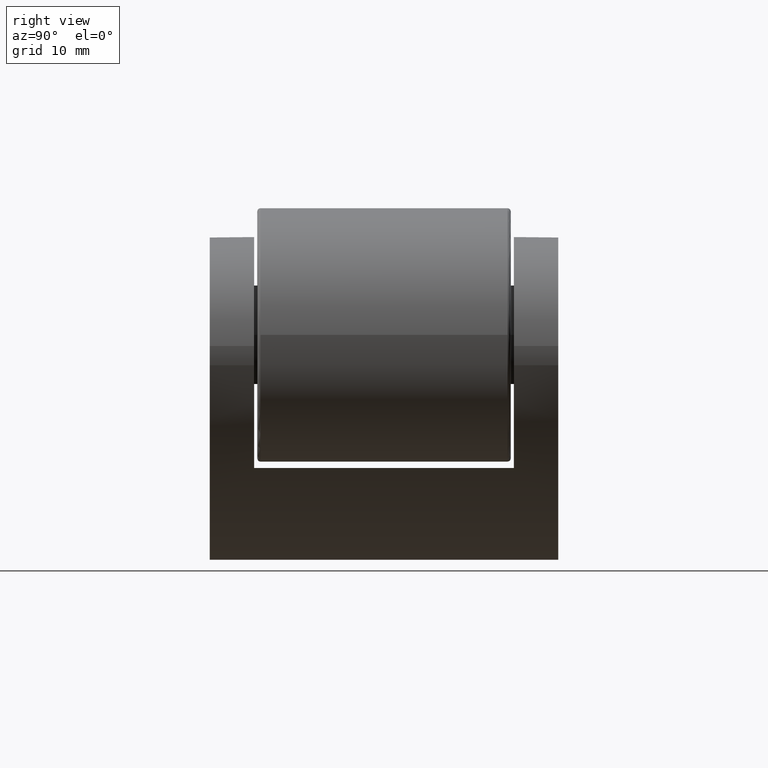
[diagram: clean part render]
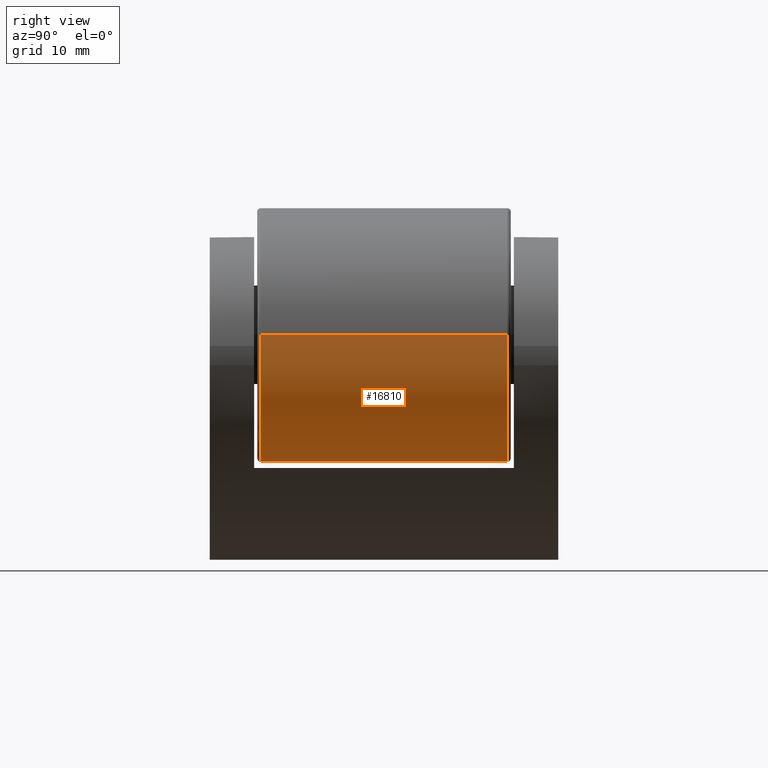
[diagram: same view with one face highlighted and labeled with its STEP entity id]
A machine part, right view. The second image highlights one B-rep face of the part: STEP entity #16810.
In plain terms, the highlighted cylindrical surface (partial cylindrical patch) has radius 20 mm, axis along (0, -1, 0).
Its self-contained STEP definition (entity closure, byte-faithful):
#143 = CARTESIAN_POINT ( 'NONE',  ( 0.000000000000000000, 19.50000000000000355, -36.00000000000000000 ) ) ;
#888 = DIRECTION ( 'NONE',  ( 0.000000000000000000, -1.000000000000000000, 0.000000000000000000 ) ) ;
#3028 = VERTEX_POINT ( 'NONE', #13844 ) ;
#3062 = VERTEX_POINT ( 'NONE', #7950 ) ;
#3724 = EDGE_CURVE ( 'NONE', #3028, #18266, #4158, .T. ) ;
#3801 = ORIENTED_EDGE ( 'NONE', *, *, #17717, .T. ) ;
#4158 = CIRCLE ( 'NONE', #6023, 20.00000000000000355 ) ;
#4461 = EDGE_CURVE ( 'NONE', #3062, #18266, #16980, .T. ) ;
#6023 = AXIS2_PLACEMENT_3D ( 'NONE', #25357, #6095, #7953 ) ;
#6095 = DIRECTION ( 'NONE',  ( 0.000000000000000000, 1.000000000000000000, 0.000000000000000000 ) ) ;
#6178 = DIRECTION ( 'NONE',  ( 0.000000000000000000, -1.000000000000000000, 0.000000000000000000 ) ) ;
#7377 = CARTESIAN_POINT ( 'NONE',  ( 0.000000000000000000, 19.50000000000000355, -15.99999999999999289 ) ) ;
#7575 = CARTESIAN_POINT ( 'NONE',  ( 0.000000000000000000, 20.00000000000000355, -36.00000000000000000 ) ) ;
#7950 = CARTESIAN_POINT ( 'NONE',  ( -20.00000000000000355, 19.50000000000000355, -15.99999999999999289 ) ) ;
#7953 = DIRECTION ( 'NONE',  ( 0.000000000000000000, 0.000000000000000000, 1.000000000000000000 ) ) ;
#9216 = EDGE_LOOP ( 'NONE', ( #14977, #3801, #17805, #14727 ) ) ;
#9421 = FACE_OUTER_BOUND ( 'NONE', #9216, .T. ) ;
#9710 = CIRCLE ( 'NONE', #18416, 20.00000000000000355 ) ;
#11229 = VECTOR ( 'NONE', #11329, 1000.000000000000000 ) ;
#11329 = DIRECTION ( 'NONE',  ( 0.000000000000000000, -1.000000000000000000, 0.000000000000000000 ) ) ;
#11385 = AXIS2_PLACEMENT_3D ( 'NONE', #11793, #6178, #12041 ) ;
#11793 = CARTESIAN_POINT ( 'NONE',  ( 0.000000000000000000, 20.00000000000000355, -15.99999999999999289 ) ) ;
#12041 = DIRECTION ( 'NONE',  ( 0.000000000000000000, 0.000000000000000000, -1.000000000000000000 ) ) ;
#13103 = DIRECTION ( 'NONE',  ( 0.000000000000000000, 0.000000000000000000, 1.000000000000000000 ) ) ;
#13844 = CARTESIAN_POINT ( 'NONE',  ( 0.000000000000000000, -19.49999999999999645, -36.00000000000000000 ) ) ;
#14016 = CARTESIAN_POINT ( 'NONE',  ( -20.00000000000000355, -19.49999999999999645, -15.99999999999999289 ) ) ;
#14213 = VECTOR ( 'NONE', #888, 1000.000000000000000 ) ;
#14629 = CARTESIAN_POINT ( 'NONE',  ( -20.00000000000000355, 20.00000000000000355, -15.99999999999999289 ) ) ;
#14727 = ORIENTED_EDGE ( 'NONE', *, *, #4461, .F. ) ;
#14977 = ORIENTED_EDGE ( 'NONE', *, *, #16561, .T. ) ;
#16561 = EDGE_CURVE ( 'NONE', #3062, #24948, #9710, .T. ) ;
#16810 = ADVANCED_FACE ( 'NONE', ( #9421 ), #17999, .T. ) ;
#16980 = LINE ( 'NONE', #14629, #14213 ) ;
#17717 = EDGE_CURVE ( 'NONE', #24948, #3028, #19786, .T. ) ;
#17805 = ORIENTED_EDGE ( 'NONE', *, *, #3724, .T. ) ;
#17999 = CYLINDRICAL_SURFACE ( 'NONE', #11385, 20.00000000000000355 ) ;
#18266 = VERTEX_POINT ( 'NONE', #14016 ) ;
#18416 = AXIS2_PLACEMENT_3D ( 'NONE', #7377, #21097, #13103 ) ;
#19786 = LINE ( 'NONE', #7575, #11229 ) ;
#21097 = DIRECTION ( 'NONE',  ( -0.000000000000000000, -1.000000000000000000, -0.000000000000000000 ) ) ;
#24948 = VERTEX_POINT ( 'NONE', #143 ) ;
#25357 = CARTESIAN_POINT ( 'NONE',  ( 0.000000000000000000, -19.49999999999999645, -15.99999999999999289 ) ) ;